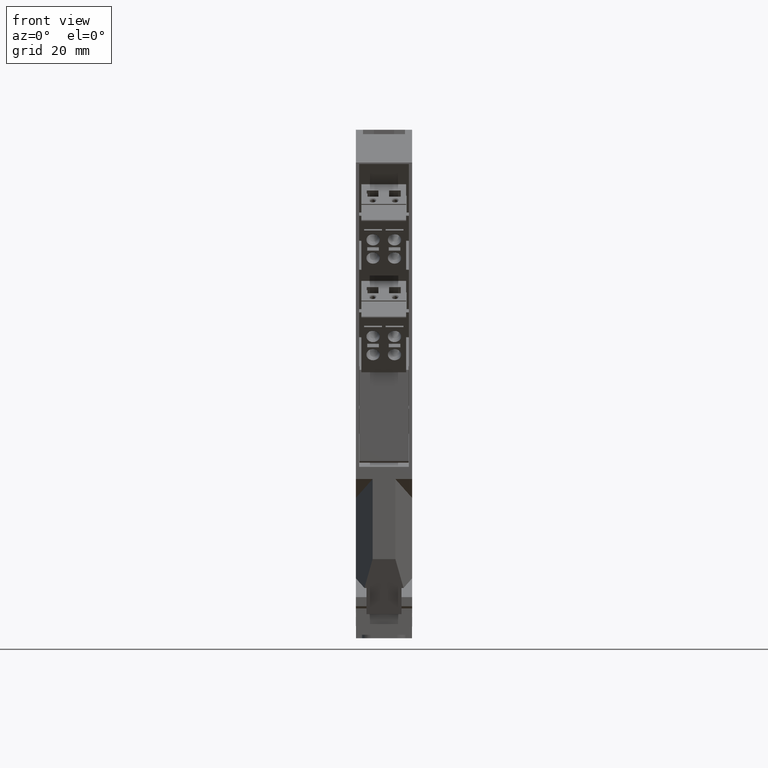
[diagram: clean part render]
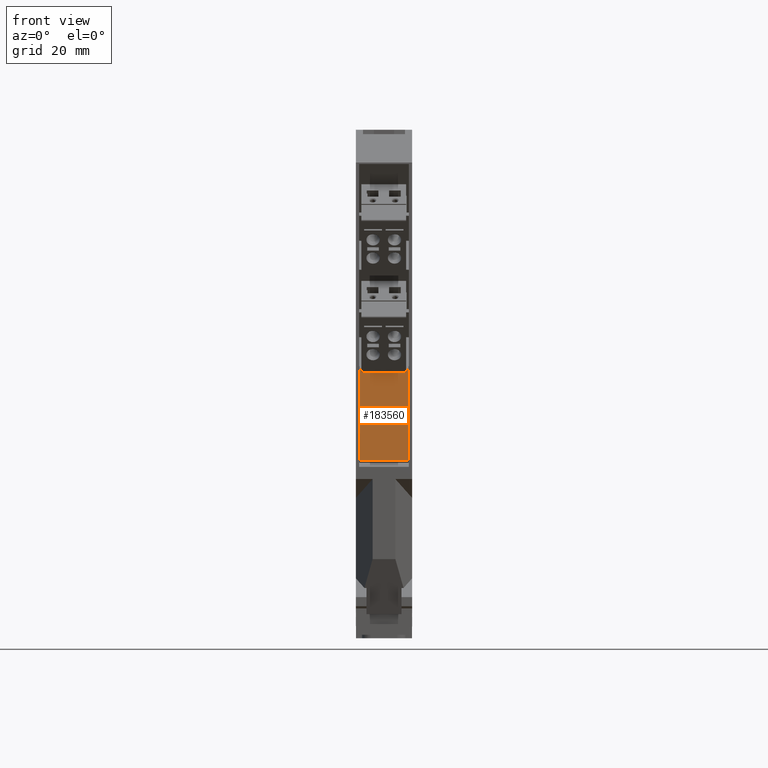
[diagram: same view with one face highlighted and labeled with its STEP entity id]
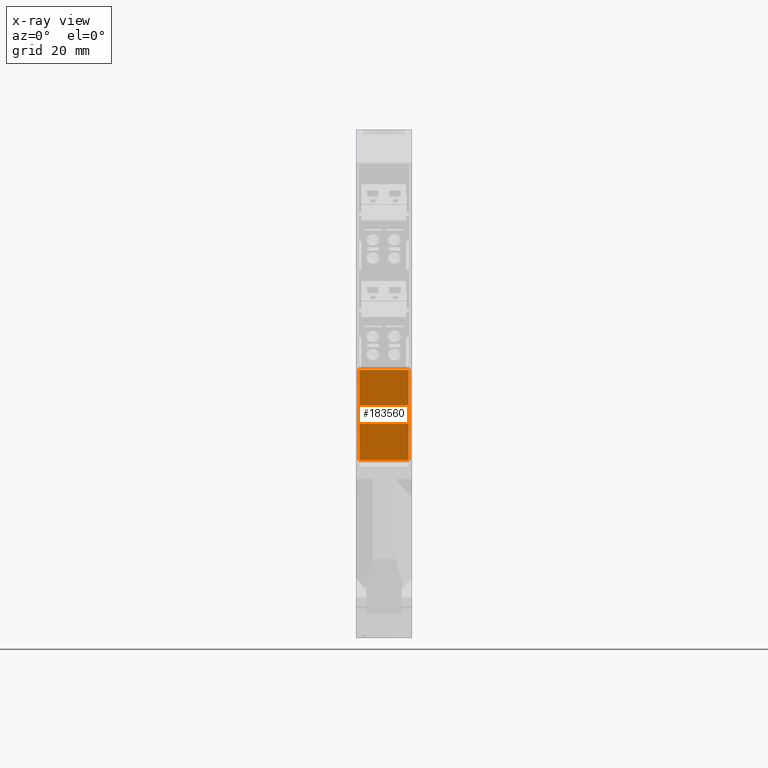
[diagram: x-ray of the same camera — body ghosted, the highlighted face saturated]
A machine part, front view. The second image highlights one B-rep face of the part: STEP entity #183560.
The next image is the same camera in x-ray: the body ghosted, the highlighted face saturated — about 0% of this face is hidden behind the body in this view.
In plain terms, the highlighted planar face has unit normal (-0, 1, -0).
Its self-contained STEP definition (entity closure, byte-faithful):
#178630=CARTESIAN_POINT('',(-1.03455022326671E-11,11.,0.885347224481908)
);
#178640=VERTEX_POINT('',#178630);
#180020=CARTESIAN_POINT('',(-5.01074737258023E-11,11.,21.1068930476269))
;
#180030=VERTEX_POINT('',#180020);
#180060=CARTESIAN_POINT('',(-2.06284767045872E-10,11.,104.843054130545))
;
#180070=DIRECTION('',(1.88477127125907E-12,-6.54244683992137E-30,-1.));
#180080=VECTOR('',#180070,1.);
#180090=LINE('',#180060,#180080);
#180100=EDGE_CURVE('',#180030,#178640,#180090,.T.);
#182180=CARTESIAN_POINT('',(-2.06284767045872E-10,8.90328656219184E-16,
104.843054130545));
#182190=DIRECTION('',(1.88477127125907E-12,-6.54244683992137E-30,-1.));
#182200=VECTOR('',#182190,1.);
#182210=LINE('',#182180,#182200);
#182220=CARTESIAN_POINT('',(-4.84595696903511E-11,8.88178419700222E-16,
21.1068930476269));
#182230=VERTEX_POINT('',#182220);
#182240=CARTESIAN_POINT('',(-1.03455022326671E-11,8.90328656218504E-16,
0.885347224481908));
#182250=VERTEX_POINT('',#182240);
#182260=EDGE_CURVE('',#182230,#182250,#182210,.T.);
#183350=CARTESIAN_POINT('',(-4.90203433400893E-11,13.,21.4044194659003))
;
#183360=DIRECTION('',(1.,-4.56768455614137E-18,1.88477127125907E-12));
#183370=DIRECTION('',(-4.56768455614137E-18,-1.,3.08148791101958E-33));
#183380=AXIS2_PLACEMENT_3D('',#183350,#183360,#183370);
#183390=PLANE('',#183380);
#183400=ORIENTED_EDGE('',*,*,#180100,.T.);
#183410=CARTESIAN_POINT('',(-4.70510297390092E-11,30.645006000914,
21.1068930476269));
#183420=DIRECTION('',(-3.46944695195361E-18,-1.,3.08204470687633E-33));
#183430=VECTOR('',#183420,1.);
#183440=LINE('',#183410,#183430);
#183450=EDGE_CURVE('',#180030,#182230,#183440,.T.);
#183460=ORIENTED_EDGE('',*,*,#183450,.F.);
#183470=ORIENTED_EDGE('',*,*,#182260,.F.);
#183480=CARTESIAN_POINT('',(-1.03383968053095E-11,5.4999999998159,
0.885347224481908));
#183490=DIRECTION('',(4.56768455614137E-18,1.,-3.08148791101958E-33));
#183500=VECTOR('',#183490,1.);
#183510=LINE('',#183480,#183500);
#183520=EDGE_CURVE('',#182250,#178640,#183510,.T.);
#183530=ORIENTED_EDGE('',*,*,#183520,.F.);
#183540=EDGE_LOOP('',(#183530,#183470,#183460,#183400));
#183550=FACE_OUTER_BOUND('',#183540,.T.);
#183560=ADVANCED_FACE('',(#183550),#183390,.F.);